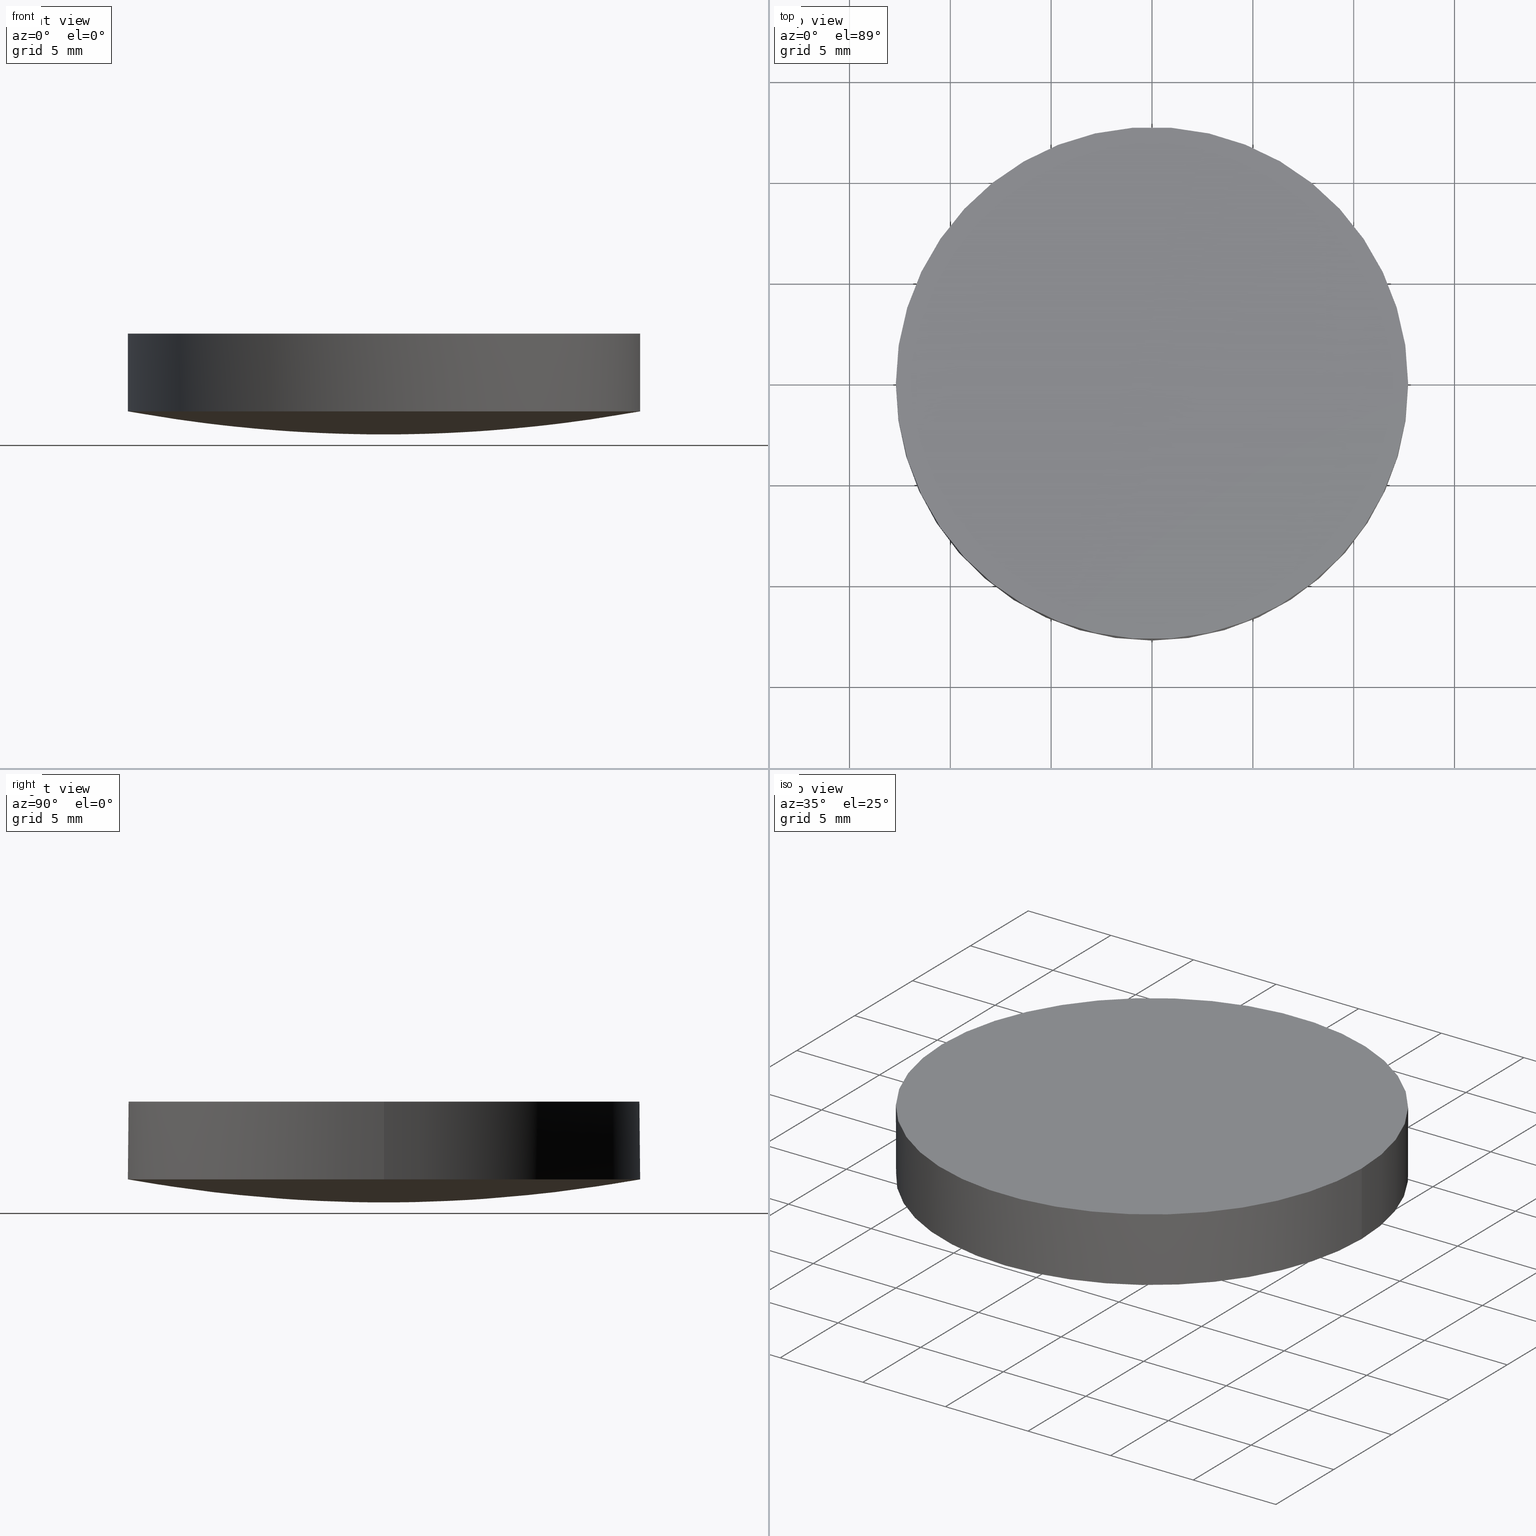
[diagram: canonical four-view strip — front | top / right | iso, engineering-drawing reading convention]
A machine part, canonical four-view strip (front | top / right | iso — engineering-drawing reading convention). The complete STEP part file that produces these views, byte-faithful:
ISO-10303-21;
HEADER;
FILE_DESCRIPTION (( 'STEP AP203' ),
    '1' );
FILE_NAME ('140005.STEP',
    '2021-03-15T05:15:01',
    ( '' ),
    ( '' ),
    'SwSTEP 2.0',
    'SolidWorks 2020',
    '' );
FILE_SCHEMA (( 'CONFIG_CONTROL_DESIGN' ));
ENDSEC;

DATA;
#1 = CARTESIAN_POINT ( 'NONE',  ( 0.7056909850177069954, 0.7056909850177069954, 0.000000000000000000 ) ) ;
#2 = CARTESIAN_POINT ( 'NONE',  ( 8.291244220368971796, 8.291244220368971796, 0.4872908528978099896 ) ) ;
#3 = PRODUCT ( '140005', '140005', '', ( #180 ) ) ;
#4 = CARTESIAN_POINT ( 'NONE',  ( 0.000000000000000000, 12.69999999999999929, 1.142824642375869892 ) ) ;
#5 = CARTESIAN_POINT ( 'NONE',  ( 8.291244220368971796, -8.291244220368971796, 0.4872908528978099896 ) ) ;
#6 = CARTESIAN_POINT ( 'NONE',  ( 0.000000000000000000, 0.000000000000000000, 0.000000000000000000 ) ) ;
#7 = APPLICATION_CONTEXT ( 'configuration controlled 3d designs of mechanical parts and assemblies' ) ;
#8 = CARTESIAN_POINT ( 'NONE',  ( -2.117681902288059970, 2.117681902288059970, 0.02132316921280770147 ) ) ;
#9 = CARTESIAN_POINT ( 'NONE',  ( -3.851859888774471706E-31, 12.70000000000000284, 1.142824642375869892 ) ) ;
#10 = CARTESIAN_POINT ( 'NONE',  ( -2.117681902288059970, -2.117681902288059970, 0.02132316921280770147 ) ) ;
#11 = DIRECTION ( 'NONE',  ( 1.000000000000000000, 0.000000000000000000, 0.000000000000000000 ) ) ;
#12 = CARTESIAN_POINT ( 'NONE',  ( 0.000000000000000000, 0.000000000000000000, 0.000000000000000000 ) ) ;
#13 = CARTESIAN_POINT ( 'NONE',  ( 1.734723475976807094E-15, -1.345898117247522881E-15, 1.142824642375869892 ) ) ;
#14 = CC_DESIGN_APPROVAL ( #113, ( #174 ) ) ;
#15 = CARTESIAN_POINT ( 'NONE',  ( -4.753890723760700398E-16, -3.881846363433560043, 0.1011880740004540008 ) ) ;
#16 = CARTESIAN_POINT ( 'NONE',  ( 0.000000000000000000, 12.69999999999999929, 1.142824642375869892 ) ) ;
#17 = CARTESIAN_POINT ( 'NONE',  ( 0.7056909850177069954, 0.7056909850177069954, 0.000000000000000000 ) ) ;
#18 = DIRECTION ( 'NONE',  ( 0.000000000000000000, 0.000000000000000000, 1.000000000000000000 ) ) ;
#19 = CARTESIAN_POINT ( 'NONE',  ( -0.7056909850177069954, 0.7056909850177069954, 0.000000000000000000 ) ) ;
#20 = CARTESIAN_POINT ( 'NONE',  ( -7.057820453293380147, 4.321668613541229862E-16, 0.3483339205862859833 ) ) ;
#21 = CARTESIAN_POINT ( 'NONE',  ( -1.231959341978499956E-15, -10.05971144362800018, 0.7061987570028900318 ) ) ;
#22 = EDGE_CURVE ( 'NONE', #122, #62, #171, .T. ) ;
#23 = CARTESIAN_POINT ( 'NONE',  ( 8.881784197001250351E-16, -8.881784197001250351E-16, 5.000000000000000000 ) ) ;
#24 = CARTESIAN_POINT ( 'NONE',  ( 11.47043146041010075, -2.107084075924560334E-15, 0.9228980148827420349 ) ) ;
#25 = CIRCLE ( 'NONE', #212, 12.70000000000000284 ) ;
#26 = PERSON_AND_ORGANIZATION ( #150, #33 ) ;
#27 = APPROVAL_PERSON_ORGANIZATION ( #31, #258, #381 ) ;
#28 = CARTESIAN_POINT ( 'NONE',  ( 2.117681902288059970, -3.890118544874019760E-16, 0.02132316921280770147 ) ) ;
#29 = CARTESIAN_POINT ( 'NONE',  ( 0.000000000000000000, 0.000000000000000000, 0.000000000000000000 ) ) ;
#30 = CARTESIAN_POINT ( 'NONE',  ( -12.69999999999999929, 7.776507174585690191E-16, 1.142824642375869892 ) ) ;
#31 = PERSON_AND_ORGANIZATION ( #150, #33 ) ;
#32 = CARTESIAN_POINT ( 'NONE',  ( 0.7056909850177069954, -0.7056909850177069954, 0.000000000000000000 ) ) ;
#33 = ORGANIZATION ( 'δָ��', 'δָ��', '' ) ;
#34 = CARTESIAN_POINT ( 'NONE',  ( 12.69999999999999929, 12.69999999999999929, 1.142824642375869892 ) ) ;
#35 = CARTESIAN_POINT ( 'NONE',  ( 10.05971144362800018, -1.847939012967749934E-15, 0.7061987570028900318 ) ) ;
#36 = ORIENTED_EDGE ( 'NONE', *, *, #366, .T. ) ;
#37 = CARTESIAN_POINT ( 'NONE',  ( -8.642222059890769995E-17, -0.7056909850177069954, 0.000000000000000000 ) ) ;
#38 = DIRECTION ( 'NONE',  ( -0.000000000000000000, -0.000000000000000000, -1.000000000000000000 ) ) ;
#39 = LOCAL_TIME ( 13, 15, 1.000000000000000000, #304 ) ;
#40 = CARTESIAN_POINT ( 'NONE',  ( -3.881846363433560043, -3.881846363433560043, 0.1011880740004540008 ) ) ;
#41 = EDGE_CURVE ( 'NONE', #79, #292, #296, .T. ) ;
#42 = ORIENTED_EDGE ( 'NONE', *, *, #240, .F. ) ;
#43 = CARTESIAN_POINT ( 'NONE',  ( -4.753890723760700398E-16, -3.881846363433560043, 0.1011880740004540008 ) ) ;
#44 = CARTESIAN_POINT ( 'NONE',  ( 12.69999999999999929, -2.332952152375710015E-15, 1.142824642375869892 ) ) ;
#45 = CARTESIAN_POINT ( 'NONE',  ( 0.000000000000000000, 0.000000000000000000, 0.000000000000000000 ) ) ;
#46 = CARTESIAN_POINT ( 'NONE',  ( -12.69999999999999929, 7.776507174585690191E-16, 1.142824642375869892 ) ) ;
#47 = CARTESIAN_POINT ( 'NONE',  ( 0.000000000000000000, 7.057820453293380147, 0.3483339205862859833 ) ) ;
#48 = ORIENTED_EDGE ( 'NONE', *, *, #366, .F. ) ;
#49 =( NAMED_UNIT ( * ) SI_UNIT ( $, .STERADIAN. ) SOLID_ANGLE_UNIT ( ) );
#50 = CARTESIAN_POINT ( 'NONE',  ( -4.753890723760700398E-16, -3.881846363433560043, 0.1011880740004540008 ) ) ;
#51 = PERSON_AND_ORGANIZATION ( #150, #33 ) ;
#52 = CARTESIAN_POINT ( 'NONE',  ( -1.015384569542389983E-15, -8.291244220368971796, 0.4872908528978099896 ) ) ;
#53 = SECURITY_CLASSIFICATION_LEVEL ( 'unclassified' ) ;
#54 = CARTESIAN_POINT ( 'NONE',  ( 8.291244220368971796, -1.523076854313580044E-15, 0.4872908528978099896 ) ) ;
#55 = EDGE_CURVE ( 'NONE', #190, #95, #124, .T. ) ;
#56 = CARTESIAN_POINT ( 'NONE',  ( 2.117681902288059970, -2.117681902288059970, 0.02132316921280770147 ) ) ;
#57 = COORDINATED_UNIVERSAL_TIME_OFFSET ( 8, 0, .AHEAD. ) ;
#58 = CARTESIAN_POINT ( 'NONE',  ( -8.291244220368971796, 5.076922847711930194E-16, 0.4872908528978099896 ) ) ;
#59 = CARTESIAN_POINT ( 'NONE',  ( 0.000000000000000000, 8.291244220368971796, 0.4872908528978099896 ) ) ;
#60 = CARTESIAN_POINT ( 'NONE',  ( -8.643337227082449863E-16, -7.057820453293380147, 0.3483339205862859833 ) ) ;
#61 = CARTESIAN_POINT ( 'NONE',  ( 0.000000000000000000, 0.000000000000000000, 0.000000000000000000 ) ) ;
#62 = VERTEX_POINT ( 'NONE', #362 ) ;
#63 = CARTESIAN_POINT ( 'NONE',  ( 0.000000000000000000, 11.47043146041010075, 0.9228980148827420349 ) ) ;
#64 = APPROVAL_PERSON_ORGANIZATION ( #26, #113, #397 ) ;
#65 = DESIGN_CONTEXT ( 'detailed design', #111, 'design' ) ;
#66 = CC_DESIGN_DATE_AND_TIME_ASSIGNMENT ( #193, #154, ( #352 ) ) ;
#67 = CARTESIAN_POINT ( 'NONE',  ( -11.47043146041010075, 11.47043146041010075, 0.9228980148827421459 ) ) ;
#68 = CARTESIAN_POINT ( 'NONE',  ( 0.000000000000000000, 0.000000000000000000, 0.000000000000000000 ) ) ;
#69 = CARTESIAN_POINT ( 'NONE',  ( 0.000000000000000000, 5.646186924660569595, 0.2208187616476849913 ) ) ;
#70 = ORIENTED_EDGE ( 'NONE', *, *, #326, .F. ) ;
#71 = VECTOR ( 'NONE', #331, 1000.000000000000000 ) ;
#72 = CARTESIAN_POINT ( 'NONE',  ( 0.000000000000000000, 0.000000000000000000, 0.000000000000000000 ) ) ;
#73 = CARTESIAN_POINT ( 'NONE',  ( -3.851859888774471706E-31, 12.70000000000000284, 1.142824642375869892 ) ) ;
#74 = LINE ( 'NONE', #297, #260 ) ;
#75 = CARTESIAN_POINT ( 'NONE',  ( 8.881784197001250351E-16, -8.881784197001250351E-16, 5.000000000000000000 ) ) ;
#76 = CARTESIAN_POINT ( 'NONE',  ( 5.646186924660569595, -1.037187711700979962E-15, 0.2208187616476849913 ) ) ;
#77 = CARTESIAN_POINT ( 'NONE',  ( 0.000000000000000000, 0.000000000000000000, 0.000000000000000000 ) ) ;
#78 = APPROVAL_ROLE ( '' ) ;
#79 = VERTEX_POINT ( 'NONE', #394 ) ;
#80 = PERSON_AND_ORGANIZATION ( #150, #33 ) ;
#81 = CARTESIAN_POINT ( 'NONE',  ( -7.057820453293380147, 7.057820453293380147, 0.3483339205862859833 ) ) ;
#82 =( LENGTH_UNIT ( ) NAMED_UNIT ( * ) SI_UNIT ( .MILLI., .METRE. ) );
#83 = CARTESIAN_POINT ( 'NONE',  ( -10.05971144362800018, 10.05971144362800018, 0.7061987570028901429 ) ) ;
#84 = APPROVAL_DATE_TIME ( #207, #350 ) ;
#85 = CARTESIAN_POINT ( 'NONE',  ( 5.646186924660570483, 5.646186924660570483, 0.2208187616476849913 ) ) ;
#86 = PERSON_AND_ORGANIZATION_ROLE ( 'creator' ) ;
#87 = CARTESIAN_POINT ( 'NONE',  ( 7.057820453293370377, -7.057820453293380147, 0.3483339205862859833 ) ) ;
#88 = CARTESIAN_POINT ( 'NONE',  ( 10.05971144362800018, -1.847939012967749934E-15, 0.7061987570028900318 ) ) ;
#89 = CARTESIAN_POINT ( 'NONE',  ( -10.05971144362800018, 10.05971144362800018, 0.7061987570028901429 ) ) ;
#90 = AXIS2_PLACEMENT_3D ( 'NONE', #13, #270, #268 ) ;
#91 = CARTESIAN_POINT ( 'NONE',  ( 7.057820453293380147, 7.057820453293370377, 0.3483339205862859833 ) ) ;
#92 = ORIENTED_EDGE ( 'NONE', *, *, #145, .F. ) ;
#93 = ADVANCED_FACE ( 'NONE', ( #229 ), #102, .T. ) ;
#94 = CARTESIAN_POINT ( 'NONE',  ( 11.47043146041010075, -11.47043146041010075, 0.9228980148827421459 ) ) ;
#95 = VERTEX_POINT ( 'NONE', #105 ) ;
#96 = CARTESIAN_POINT ( 'NONE',  ( -11.47043146041010075, 7.023613586415189939E-16, 0.9228980148827420349 ) ) ;
#97 = CC_DESIGN_APPROVAL ( #350, ( #392 ) ) ;
#98 = ORIENTED_EDGE ( 'NONE', *, *, #22, .T. ) ;
#99 = CARTESIAN_POINT ( 'NONE',  ( 0.000000000000000000, 5.646186924660569595, 0.2208187616476849913 ) ) ;
#100 = CARTESIAN_POINT ( 'NONE',  ( 0.000000000000000000, 0.000000000000000000, 0.000000000000000000 ) ) ;
#101 = CARTESIAN_POINT ( 'NONE',  ( -8.643337227082449863E-16, -7.057820453293380147, 0.3483339205862859833 ) ) ;
#102 = PLANE ( 'NONE',  #343 ) ;
#103 =( GEOMETRIC_REPRESENTATION_CONTEXT ( 3 ) GLOBAL_UNCERTAINTY_ASSIGNED_CONTEXT ( ( #330 ) ) GLOBAL_UNIT_ASSIGNED_CONTEXT ( ( #82, #372, #49 ) ) REPRESENTATION_CONTEXT ( 'NONE', 'WORKASPACE' ) );
#104 = CARTESIAN_POINT ( 'NONE',  ( 8.881784197001250351E-16, -8.881784197001250351E-16, 1.142824642375869892 ) ) ;
#105 = CARTESIAN_POINT ( 'NONE',  ( -1.555301434917141588E-15, -12.70000000000000462, 1.142824642375869892 ) ) ;
#106 = CARTESIAN_POINT ( 'NONE',  ( 0.000000000000000000, 0.000000000000000000, 0.000000000000000000 ) ) ;
#107 = CC_DESIGN_DATE_AND_TIME_ASSIGNMENT ( #184, #311, ( #392 ) ) ;
#108 = CARTESIAN_POINT ( 'NONE',  ( 0.000000000000000000, 11.47043146041010075, 0.9228980148827420349 ) ) ;
#109 = DIRECTION ( 'NONE',  ( 1.000000000000000000, 0.000000000000000000, 0.000000000000000000 ) ) ;
#110 = ORIENTED_EDGE ( 'NONE', *, *, #170, .T. ) ;
#111 = APPLICATION_CONTEXT ( 'configuration controlled 3d designs of mechanical parts and assemblies' ) ;
#112 = CARTESIAN_POINT ( 'NONE',  ( -3.881846363433560043, -3.881846363433560043, 0.1011880740004540008 ) ) ;
#113 = APPROVAL ( #152, 'δָ��' ) ;
#114 = CARTESIAN_POINT ( 'NONE',  ( 10.05971144362800018, -10.05971144362800018, 0.7061987570028901429 ) ) ;
#115 = COORDINATED_UNIVERSAL_TIME_OFFSET ( 8, 0, .AHEAD. ) ;
#116 = CARTESIAN_POINT ( 'NONE',  ( -8.643337227082449863E-16, -7.057820453293380147, 0.3483339205862859833 ) ) ;
#117 = AXIS2_PLACEMENT_3D ( 'NONE', #167, #38, #390 ) ;
#118 = DIRECTION ( 'NONE',  ( 0.000000000000000000, 0.000000000000000000, 1.000000000000000000 ) ) ;
#119 = CARTESIAN_POINT ( 'NONE',  ( 0.000000000000000000, 10.05971144362800018, 0.7061987570028900318 ) ) ;
#120 = CARTESIAN_POINT ( 'NONE',  ( -3.881846363433560043, 2.376945361880350199E-16, 0.1011880740004540008 ) ) ;
#121 = PRODUCT_DEFINITION_SHAPE ( 'NONE', 'NONE',  #392 ) ;
#122 = VERTEX_POINT ( 'NONE', #9 ) ;
#123 = CARTESIAN_POINT ( 'NONE',  ( -7.057820453293380147, -7.057820453293380147, 0.3483339205862859833 ) ) ;
#124 = CIRCLE ( 'NONE', #90, 12.70000000000000284 ) ;
#125 = CARTESIAN_POINT ( 'NONE',  ( 0.000000000000000000, 0.000000000000000000, 0.000000000000000000 ) ) ;
#126 = DATE_AND_TIME ( #187, #261 ) ;
#127 = CARTESIAN_POINT ( 'NONE',  ( 0.000000000000000000, 10.05971144362800018, 0.7061987570028900318 ) ) ;
#128 = MANIFOLD_SOLID_BREP ( '����1', #254 ) ;
#129 = CARTESIAN_POINT ( 'NONE',  ( 12.69999999999999929, -12.69999999999999929, 1.142824642375869892 ) ) ;
#130 = CARTESIAN_POINT ( 'NONE',  ( 0.000000000000000000, 2.117681902288059970, 0.02132316921280770147 ) ) ;
#131 = CARTESIAN_POINT ( 'NONE',  ( 0.000000000000000000, 3.881846363433560043, 0.1011880740004540008 ) ) ;
#132 = CARTESIAN_POINT ( 'NONE',  ( 0.000000000000000000, 0.7056909850177069954, 0.000000000000000000 ) ) ;
#133 = CARTESIAN_POINT ( 'NONE',  ( 12.70000000000000462, -8.881784197001248379E-16, 1.142824642375869892 ) ) ;
#134 = CARTESIAN_POINT ( 'NONE',  ( 5.646186924660570483, 5.646186924660570483, 0.2208187616476849913 ) ) ;
#135 = EDGE_LOOP ( 'NONE', ( #48, #287 ) ) ;
#136 = CC_DESIGN_PERSON_AND_ORGANIZATION_ASSIGNMENT ( #214, #342, ( #174 ) ) ;
#137 = CARTESIAN_POINT ( 'NONE',  ( -3.881846363433560043, 3.881846363433560043, 0.1011880740004540008 ) ) ;
#138 = EDGE_LOOP ( 'NONE', ( #317, #92, #358, #252, #36 ) ) ;
#139 =( BOUNDED_SURFACE ( )  B_SPLINE_SURFACE ( 3, 2, ( 
 ( #364, #333, #46, #369, #173, #201, #44, #299, #16 ),
 ( #108, #236, #306, #153, #142, #399, #24, #249, #277 ),
 ( #119, #83, #244, #405, #21, #114, #88, #341, #379 ),
 ( #349, #375, #58, #216, #52, #250, #54, #373, #149 ),
 ( #280, #81, #20, #179, #116, #87, #339, #210, #144 ),
 ( #310, #147, #215, #211, #344, #400, #181, #85, #404 ),
 ( #242, #308, #120, #112, #50, #185, #378, #279, #402 ),
 ( #247, #177, #312, #376, #347, #56, #28, #282, #303 ),
 ( #182, #19, #275, #351, #356, #32, #155, #1, #259 ),
 ( #125, #29, #316, #195, #61, #6, #191, #321, #354 ) ),
 .UNSPECIFIED., .F., .T., .F. ) 
 B_SPLINE_SURFACE_WITH_KNOTS ( ( 4, 1, 1, 1, 1, 1, 1, 4 ),
 ( 3, 2, 2, 2, 3 ),
 ( 0.000000000000000000, 0.2934918748177540171, 0.3352534923770330022, 0.4186732724612799994, 0.5851388632198070150, 0.6682250307714420190, 0.8341866061546360234, 1.000000000000000000 ),
 ( 0.000000000000000000, 90.00000000000000000, 180.0000000000000000, 270.0000000000000000, 360.0000000000000000 ),
 .UNSPECIFIED. ) 
 GEOMETRIC_REPRESENTATION_ITEM ( )  RATIONAL_B_SPLINE_SURFACE ( (
 ( 1.000000000000000000, 0.7071067811865480168, 1.000000000000000000, 0.7071067811865480168, 1.000000000000000000, 0.7071067811865480168, 1.000000000000000000, 0.7071067811865480168, 1.000000000000000000),
 ( 1.000000000000000000, 0.7071067811865480168, 1.000000000000000000, 0.7071067811865480168, 1.000000000000000000, 0.7071067811865480168, 1.000000000000000000, 0.7071067811865480168, 1.000000000000000000),
 ( 1.000000000000000000, 0.7071067811865480168, 1.000000000000000000, 0.7071067811865480168, 1.000000000000000000, 0.7071067811865480168, 1.000000000000000000, 0.7071067811865480168, 1.000000000000000000),
 ( 1.000000000000000000, 0.7071067811865480168, 1.000000000000000000, 0.7071067811865480168, 1.000000000000000000, 0.7071067811865480168, 1.000000000000000000, 0.7071067811865480168, 1.000000000000000000),
 ( 1.000000000000000000, 0.7071067811865480168, 1.000000000000000000, 0.7071067811865480168, 1.000000000000000000, 0.7071067811865480168, 1.000000000000000000, 0.7071067811865480168, 1.000000000000000000),
 ( 1.000000000000000000, 0.7071067811865480168, 1.000000000000000000, 0.7071067811865480168, 1.000000000000000000, 0.7071067811865480168, 1.000000000000000000, 0.7071067811865480168, 1.000000000000000000),
 ( 1.000000000000000000, 0.7071067811865480168, 1.000000000000000000, 0.7071067811865480168, 1.000000000000000000, 0.7071067811865480168, 1.000000000000000000, 0.7071067811865480168, 1.000000000000000000),
 ( 1.000000000000000000, 0.7071067811865480168, 1.000000000000000000, 0.7071067811865480168, 1.000000000000000000, 0.7071067811865480168, 1.000000000000000000, 0.7071067811865480168, 1.000000000000000000),
 ( 1.000000000000000000, 0.7071067811865480168, 1.000000000000000000, 0.7071067811865480168, 1.000000000000000000, 0.7071067811865480168, 1.000000000000000000, 0.7071067811865480168, 1.000000000000000000),
 ( 1.000000000000000000, 0.7071067811865480168, 1.000000000000000000, 0.7071067811865480168, 1.000000000000000000, 0.7071067811865480168, 1.000000000000000000, 0.7071067811865480168, 1.000000000000000000) ) ) 
 REPRESENTATION_ITEM ( '' )  SURFACE ( )  );
#140 = CARTESIAN_POINT ( 'NONE',  ( 0.000000000000000000, 0.000000000000000000, 0.000000000000000000 ) ) ;
#141 = CARTESIAN_POINT ( 'NONE',  ( 8.881784197001250351E-16, -8.881784197001250351E-16, 1.142824642375869892 ) ) ;
#142 = CARTESIAN_POINT ( 'NONE',  ( -1.404722717283039960E-15, -11.47043146041010075, 0.9228980148827420349 ) ) ;
#143 = CALENDAR_DATE ( 2021, 15, 3 ) ;
#144 = CARTESIAN_POINT ( 'NONE',  ( 0.000000000000000000, 7.057820453293380147, 0.3483339205862859833 ) ) ;
#145 = EDGE_CURVE ( 'NONE', #95, #79, #281, .T. ) ;
#146 = PERSON_AND_ORGANIZATION ( #150, #33 ) ;
#147 = CARTESIAN_POINT ( 'NONE',  ( -5.646186924660570483, 5.646186924660570483, 0.2208187616476849913 ) ) ;
#148 = CARTESIAN_POINT ( 'NONE',  ( 1.734723475976807094E-15, -1.345898117247522881E-15, 1.142824642375869892 ) ) ;
#149 = CARTESIAN_POINT ( 'NONE',  ( 0.000000000000000000, 8.291244220368971796, 0.4872908528978099896 ) ) ;
#150 = PERSON ( 'δָ��', 'δָ��', 'δָ��', ('δָ��'), ('δָ��'), ('δָ��') ) ;
#151 = AXIS2_PLACEMENT_3D ( 'NONE', #141, #398, #206 ) ;
#152 = APPROVAL_STATUS ( 'not_yet_approved' ) ;
#153 = CARTESIAN_POINT ( 'NONE',  ( -11.47043146041010075, -11.47043146041010075, 0.9228980148827421459 ) ) ;
#154 = DATE_TIME_ROLE ( 'classification_date' ) ;
#155 = CARTESIAN_POINT ( 'NONE',  ( 0.7056909850177069954, -1.296333308983620122E-16, 0.000000000000000000 ) ) ;
#156 = FACE_OUTER_BOUND ( 'NONE', #371, .T. ) ;
#157 = ADVANCED_FACE ( 'NONE', ( #294 ), #328, .T. ) ;
#158 = COORDINATED_UNIVERSAL_TIME_OFFSET ( 8, 0, .AHEAD. ) ;
#159 = CARTESIAN_POINT ( 'NONE',  ( -1.555301434917140010E-15, -12.69999999999999929, 1.142824642375869892 ) ) ;
#160 = ORIENTED_EDGE ( 'NONE', *, *, #314, .T. ) ;
#161 = CARTESIAN_POINT ( 'NONE',  ( 11.47043146041010075, -2.107084075924560334E-15, 0.9228980148827420349 ) ) ;
#162 = CARTESIAN_POINT ( 'NONE',  ( 10.05971144362800018, 10.05971144362800018, 0.7061987570028901429 ) ) ;
#163 = CIRCLE ( 'NONE', #219, 12.69999999999999929 ) ;
#164 = CARTESIAN_POINT ( 'NONE',  ( -5.646186924660570483, -5.646186924660570483, 0.2208187616476849913 ) ) ;
#165 = CARTESIAN_POINT ( 'NONE',  ( 0.000000000000000000, 10.05971144362800018, 0.7061987570028900318 ) ) ;
#166 = CARTESIAN_POINT ( 'NONE',  ( -1.555301434917141588E-15, -12.70000000000000462, 1.142824642375869892 ) ) ;
#167 = CARTESIAN_POINT ( 'NONE',  ( 1.734723475976807094E-15, -1.345898117247522881E-15, 1.142824642375869892 ) ) ;
#168 = CARTESIAN_POINT ( 'NONE',  ( 2.117681902288059970, -3.890118544874019760E-16, 0.02132316921280770147 ) ) ;
#169 = CARTESIAN_POINT ( 'NONE',  ( 0.000000000000000000, 7.057820453293380147, 0.3483339205862859833 ) ) ;
#170 = EDGE_CURVE ( 'NONE', #292, #337, #238, .T. ) ;
#171 = B_SPLINE_CURVE_WITH_KNOTS ( 'NONE', 3,
 ( #73, #234, #165, #203, #169, #264, #131, #301, #272, #77 ),
 .UNSPECIFIED., .F., .F.,
 ( 4, 1, 1, 1, 1, 1, 1, 4 ),
 ( 0.000000000000000000, 0.2934918748177540171, 0.3352534923770330022, 0.4186732724612799994, 0.5851388632198070150, 0.6682250307714420190, 0.8341866061546360234, 1.000000000000000000 ),
 .UNSPECIFIED. ) ;
#172 = CARTESIAN_POINT ( 'NONE',  ( -1.015384569542389983E-15, -8.291244220368971796, 0.4872908528978099896 ) ) ;
#173 = CARTESIAN_POINT ( 'NONE',  ( -1.555301434917140010E-15, -12.69999999999999929, 1.142824642375869892 ) ) ;
#174 = PRODUCT_DEFINITION_FORMATION_WITH_SPECIFIED_SOURCE ( '�κ�', '', #3, .NOT_KNOWN. ) ;
#175 = CARTESIAN_POINT ( 'NONE',  ( 0.000000000000000000, 3.881846363433560043, 0.1011880740004540008 ) ) ;
#176 = ORIENTED_EDGE ( 'NONE', *, *, #41, .T. ) ;
#177 = CARTESIAN_POINT ( 'NONE',  ( -2.117681902288059970, 2.117681902288059970, 0.02132316921280770147 ) ) ;
#178 = COORDINATED_UNIVERSAL_TIME_OFFSET ( 8, 0, .AHEAD. ) ;
#179 = CARTESIAN_POINT ( 'NONE',  ( -7.057820453293380147, -7.057820453293380147, 0.3483339205862859833 ) ) ;
#180 = MECHANICAL_CONTEXT ( 'NONE', #7, 'mechanical' ) ;
#181 = CARTESIAN_POINT ( 'NONE',  ( 5.646186924660569595, -1.037187711700979962E-15, 0.2208187616476849913 ) ) ;
#182 = CARTESIAN_POINT ( 'NONE',  ( 0.000000000000000000, 0.7056909850177069954, 0.000000000000000000 ) ) ;
#183 = CC_DESIGN_PERSON_AND_ORGANIZATION_ASSIGNMENT ( #80, #248, ( #3 ) ) ;
#184 = DATE_AND_TIME ( #338, #274 ) ;
#185 = CARTESIAN_POINT ( 'NONE',  ( 3.881846363433560043, -3.881846363433560043, 0.1011880740004540008 ) ) ;
#186 = CARTESIAN_POINT ( 'NONE',  ( -8.291244220368971796, -8.291244220368971796, 0.4872908528978099896 ) ) ;
#187 = CALENDAR_DATE ( 2021, 15, 3 ) ;
#188 = CC_DESIGN_PERSON_AND_ORGANIZATION_ASSIGNMENT ( #51, #86, ( #392 ) ) ;
#189 = CARTESIAN_POINT ( 'NONE',  ( 7.057820453293370377, -7.057820453293380147, 0.3483339205862859833 ) ) ;
#190 = VERTEX_POINT ( 'NONE', #133 ) ;
#191 = CARTESIAN_POINT ( 'NONE',  ( 0.000000000000000000, 0.000000000000000000, 0.000000000000000000 ) ) ;
#192 = AXIS2_PLACEMENT_3D ( 'NONE', #148, #309, #302 ) ;
#193 = DATE_AND_TIME ( #246, #313 ) ;
#194 = CARTESIAN_POINT ( 'NONE',  ( -1.231959341978499956E-15, -10.05971144362800018, 0.7061987570028900318 ) ) ;
#195 = CARTESIAN_POINT ( 'NONE',  ( 0.000000000000000000, 0.000000000000000000, 0.000000000000000000 ) ) ;
#196 = CARTESIAN_POINT ( 'NONE',  ( 0.7056909850177069954, -0.7056909850177069954, 0.000000000000000000 ) ) ;
#197 = EDGE_LOOP ( 'NONE', ( #355, #383, #224, #98 ) ) ;
#198 = CARTESIAN_POINT ( 'NONE',  ( 3.881846363433560043, -3.881846363433560043, 0.1011880740004540008 ) ) ;
#199 = ORIENTED_EDGE ( 'NONE', *, *, #22, .F. ) ;
#200 = CARTESIAN_POINT ( 'NONE',  ( -12.69999999999999751, 6.671230152170134961E-16, 5.000000000000000000 ) ) ;
#201 = CARTESIAN_POINT ( 'NONE',  ( 12.69999999999999929, -12.69999999999999929, 1.142824642375869892 ) ) ;
#202 = DIRECTION ( 'NONE',  ( 1.000000000000000000, 0.000000000000000000, 0.000000000000000000 ) ) ;
#203 = CARTESIAN_POINT ( 'NONE',  ( 0.000000000000000000, 8.291244220368971796, 0.4872908528978099896 ) ) ;
#204 = CARTESIAN_POINT ( 'NONE',  ( -8.642222059890769995E-17, -0.7056909850177069954, 0.000000000000000000 ) ) ;
#205 = APPROVAL_PERSON_ORGANIZATION ( #377, #350, #78 ) ;
#206 = DIRECTION ( 'NONE',  ( 1.000000000000000000, 0.000000000000000000, 0.000000000000000000 ) ) ;
#207 = DATE_AND_TIME ( #340, #325 ) ;
#208 = CARTESIAN_POINT ( 'NONE',  ( -12.69999999999999751, 6.671230152170134961E-16, 1.142824642375869892 ) ) ;
#209 = APPROVAL_STATUS ( 'not_yet_approved' ) ;
#210 = CARTESIAN_POINT ( 'NONE',  ( 7.057820453293380147, 7.057820453293370377, 0.3483339205862859833 ) ) ;
#211 = CARTESIAN_POINT ( 'NONE',  ( -5.646186924660570483, -5.646186924660570483, 0.2208187616476849913 ) ) ;
#212 = AXIS2_PLACEMENT_3D ( 'NONE', #386, #283, #318 ) ;
#213 = AXIS2_PLACEMENT_3D ( 'NONE', #241, #118, #109 ) ;
#214 = PERSON_AND_ORGANIZATION ( #150, #33 ) ;
#215 = CARTESIAN_POINT ( 'NONE',  ( -5.646186924660569595, 3.457292372336599873E-16, 0.2208187616476849913 ) ) ;
#216 = CARTESIAN_POINT ( 'NONE',  ( -8.291244220368971796, -8.291244220368971796, 0.4872908528978099896 ) ) ;
#217 = SHAPE_DEFINITION_REPRESENTATION ( #121, #346 ) ;
#218 = CARTESIAN_POINT ( 'NONE',  ( -10.05971144362800018, 6.159796709892499782E-16, 0.7061987570028900318 ) ) ;
#219 = AXIS2_PLACEMENT_3D ( 'NONE', #23, #273, #307 ) ;
#220 = CARTESIAN_POINT ( 'NONE',  ( -10.05971144362800018, -10.05971144362800018, 0.7061987570028901429 ) ) ;
#221 = ADVANCED_FACE ( 'NONE', ( #266 ), #139, .T. ) ;
#222 = CARTESIAN_POINT ( 'NONE',  ( 0.000000000000000000, 11.47043146041010075, 0.9228980148827420349 ) ) ;
#223 = CARTESIAN_POINT ( 'NONE',  ( 10.05971144362800018, -10.05971144362800018, 0.7061987570028901429 ) ) ;
#224 = ORIENTED_EDGE ( 'NONE', *, *, #388, .T. ) ;
#225 = CARTESIAN_POINT ( 'NONE',  ( -1.404722717283039960E-15, -11.47043146041010075, 0.9228980148827420349 ) ) ;
#226 = ORIENTED_EDGE ( 'NONE', *, *, #388, .F. ) ;
#227 = CARTESIAN_POINT ( 'NONE',  ( -5.646186924660570483, 5.646186924660570483, 0.2208187616476849913 ) ) ;
#228 = FACE_OUTER_BOUND ( 'NONE', #138, .T. ) ;
#229 = FACE_OUTER_BOUND ( 'NONE', #135, .T. ) ;
#230 = PRODUCT_RELATED_PRODUCT_CATEGORY ( 'detail', '', ( #3 ) ) ;
#231 = CARTESIAN_POINT ( 'NONE',  ( -0.7056909850177069954, -0.7056909850177069954, 0.000000000000000000 ) ) ;
#232 = ORIENTED_EDGE ( 'NONE', *, *, #55, .T. ) ;
#233 = CARTESIAN_POINT ( 'NONE',  ( -2.593412363249349958E-16, -2.117681902288059970, 0.02132316921280770147 ) ) ;
#234 = CARTESIAN_POINT ( 'NONE',  ( 0.000000000000000000, 11.47043146041010075, 0.9228980148827420349 ) ) ;
#235 = CARTESIAN_POINT ( 'NONE',  ( 0.000000000000000000, 0.000000000000000000, 0.000000000000000000 ) ) ;
#236 = CARTESIAN_POINT ( 'NONE',  ( -11.47043146041010075, 11.47043146041010075, 0.9228980148827421459 ) ) ;
#237 = APPLICATION_PROTOCOL_DEFINITION ( 'international standard', 'config_control_design', 1994, #7 ) ;
#238 = CIRCLE ( 'NONE', #305, 12.69999999999999929 ) ;
#239 = DIRECTION ( 'NONE',  ( -0.000000000000000000, -0.000000000000000000, -1.000000000000000000 ) ) ;
#240 = EDGE_CURVE ( 'NONE', #122, #190, #25, .T. ) ;
#241 = CARTESIAN_POINT ( 'NONE',  ( 0.000000000000000000, 0.000000000000000000, 0.000000000000000000 ) ) ;
#242 = CARTESIAN_POINT ( 'NONE',  ( 0.000000000000000000, 3.881846363433560043, 0.1011880740004540008 ) ) ;
#243 = APPROVAL_DATE_TIME ( #276, #113 ) ;
#244 = CARTESIAN_POINT ( 'NONE',  ( -10.05971144362800018, 6.159796709892499782E-16, 0.7061987570028900318 ) ) ;
#245 = ADVANCED_FACE ( 'NONE', ( #156 ), #359, .T. ) ;
#246 = CALENDAR_DATE ( 2021, 15, 3 ) ;
#247 = CARTESIAN_POINT ( 'NONE',  ( 0.000000000000000000, 2.117681902288059970, 0.02132316921280770147 ) ) ;
#248 = PERSON_AND_ORGANIZATION_ROLE ( 'design_owner' ) ;
#249 = CARTESIAN_POINT ( 'NONE',  ( 11.47043146041010075, 11.47043146041010075, 0.9228980148827421459 ) ) ;
#250 = CARTESIAN_POINT ( 'NONE',  ( 8.291244220368971796, -8.291244220368971796, 0.4872908528978099896 ) ) ;
#251 = CARTESIAN_POINT ( 'NONE',  ( -12.69999999999999929, 12.69999999999999929, 1.142824642375869892 ) ) ;
#252 = ORIENTED_EDGE ( 'NONE', *, *, #326, .T. ) ;
#253 = CARTESIAN_POINT ( 'NONE',  ( -8.291244220368971796, 8.291244220368971796, 0.4872908528978099896 ) ) ;
#254 = CLOSED_SHELL ( 'NONE', ( #245, #157, #221, #288, #93 ) ) ;
#255 = ORIENTED_EDGE ( 'NONE', *, *, #240, .T. ) ;
#256 = APPROVAL_STATUS ( 'not_yet_approved' ) ;
#257 = CARTESIAN_POINT ( 'NONE',  ( 0.000000000000000000, 12.69999999999999929, 1.142824642375869892 ) ) ;
#258 = APPROVAL ( #256, 'δָ��' ) ;
#259 = CARTESIAN_POINT ( 'NONE',  ( 0.000000000000000000, 0.7056909850177069954, 0.000000000000000000 ) ) ;
#260 = VECTOR ( 'NONE', #345, 1000.000000000000000 ) ;
#261 = LOCAL_TIME ( 13, 15, 1.000000000000000000, #158 ) ;
#262 = CARTESIAN_POINT ( 'NONE',  ( 8.291244220368971796, -1.523076854313580044E-15, 0.4872908528978099896 ) ) ;
#263 = CARTESIAN_POINT ( 'NONE',  ( 0.000000000000000000, 0.000000000000000000, 0.000000000000000000 ) ) ;
#264 = CARTESIAN_POINT ( 'NONE',  ( 0.000000000000000000, 5.646186924660569595, 0.2208187616476849913 ) ) ;
#265 = CYLINDRICAL_SURFACE ( 'NONE', #320, 12.69999999999999929 ) ;
#266 = FACE_OUTER_BOUND ( 'NONE', #197, .T. ) ;
#267 = CARTESIAN_POINT ( 'NONE',  ( -0.7056909850177069954, 4.321111029945389928E-17, 0.000000000000000000 ) ) ;
#268 = DIRECTION ( 'NONE',  ( -1.000000000000000000, 0.000000000000000000, 0.000000000000000000 ) ) ;
#269 = CARTESIAN_POINT ( 'NONE',  ( 0.000000000000000000, 2.117681902288059970, 0.02132316921280770147 ) ) ;
#270 = DIRECTION ( 'NONE',  ( -0.000000000000000000, -0.000000000000000000, -1.000000000000000000 ) ) ;
#271 = CARTESIAN_POINT ( 'NONE',  ( 0.000000000000000000, 0.000000000000000000, 0.000000000000000000 ) ) ;
#272 = CARTESIAN_POINT ( 'NONE',  ( 0.000000000000000000, 0.7056909850177069954, 0.000000000000000000 ) ) ;
#273 = DIRECTION ( 'NONE',  ( -0.000000000000000000, -0.000000000000000000, -1.000000000000000000 ) ) ;
#274 = LOCAL_TIME ( 13, 15, 1.000000000000000000, #57 ) ;
#275 = CARTESIAN_POINT ( 'NONE',  ( -0.7056909850177069954, 4.321111029945389928E-17, 0.000000000000000000 ) ) ;
#276 = DATE_AND_TIME ( #143, #39 ) ;
#277 = CARTESIAN_POINT ( 'NONE',  ( 0.000000000000000000, 11.47043146041010075, 0.9228980148827420349 ) ) ;
#278 = PERSON_AND_ORGANIZATION_ROLE ( 'creator' ) ;
#279 = CARTESIAN_POINT ( 'NONE',  ( 3.881846363433560043, 3.881846363433549829, 0.1011880740004540008 ) ) ;
#280 = CARTESIAN_POINT ( 'NONE',  ( 0.000000000000000000, 7.057820453293380147, 0.3483339205862859833 ) ) ;
#281 = CIRCLE ( 'NONE', #117, 12.70000000000000284 ) ;
#282 = CARTESIAN_POINT ( 'NONE',  ( 2.117681902288059970, 2.117681902288059970, 0.02132316921280770147 ) ) ;
#283 = DIRECTION ( 'NONE',  ( -0.000000000000000000, -0.000000000000000000, -1.000000000000000000 ) ) ;
#284 = APPROVAL_DATE_TIME ( #126, #258 ) ;
#285 = CARTESIAN_POINT ( 'NONE',  ( -1.015384569542389983E-15, -8.291244220368971796, 0.4872908528978099896 ) ) ;
#286 = CARTESIAN_POINT ( 'NONE',  ( 12.69999999999999929, -2.332952152375710015E-15, 1.142824642375869892 ) ) ;
#287 = ORIENTED_EDGE ( 'NONE', *, *, #170, .F. ) ;
#288 = ADVANCED_FACE ( 'NONE', ( #228 ), #265, .T. ) ;
#289 = CARTESIAN_POINT ( 'NONE',  ( -8.291244220368971796, 5.076922847711930194E-16, 0.4872908528978099896 ) ) ;
#290 = CARTESIAN_POINT ( 'NONE',  ( 0.000000000000000000, 10.05971144362800018, 0.7061987570028900318 ) ) ;
#291 = CARTESIAN_POINT ( 'NONE',  ( 3.881846363433560043, 3.881846363433549829, 0.1011880740004540008 ) ) ;
#292 = VERTEX_POINT ( 'NONE', #200 ) ;
#293 = CARTESIAN_POINT ( 'NONE',  ( -5.646186924660569595, 3.457292372336599873E-16, 0.2208187616476849913 ) ) ;
#294 = FACE_OUTER_BOUND ( 'NONE', #385, .T. ) ;
#295 = CARTESIAN_POINT ( 'NONE',  ( 2.117681902288059970, -2.117681902288059970, 0.02132316921280770147 ) ) ;
#296 = LINE ( 'NONE', #208, #71 ) ;
#297 = CARTESIAN_POINT ( 'NONE',  ( 12.70000000000000107, -8.881784197001250351E-16, 1.142824642375869892 ) ) ;
#298 = CC_DESIGN_SECURITY_CLASSIFICATION ( #352, ( #174 ) ) ;
#299 = CARTESIAN_POINT ( 'NONE',  ( 12.69999999999999929, 12.69999999999999929, 1.142824642375869892 ) ) ;
#300 = CARTESIAN_POINT ( 'NONE',  ( -3.881846363433560043, 2.376945361880350199E-16, 0.1011880740004540008 ) ) ;
#301 = CARTESIAN_POINT ( 'NONE',  ( 0.000000000000000000, 2.117681902288059970, 0.02132316921280770147 ) ) ;
#302 = DIRECTION ( 'NONE',  ( -1.000000000000000000, 0.000000000000000000, 0.000000000000000000 ) ) ;
#303 = CARTESIAN_POINT ( 'NONE',  ( 0.000000000000000000, 2.117681902288059970, 0.02132316921280770147 ) ) ;
#304 = COORDINATED_UNIVERSAL_TIME_OFFSET ( 8, 0, .AHEAD. ) ;
#305 = AXIS2_PLACEMENT_3D ( 'NONE', #75, #239, #11 ) ;
#306 = CARTESIAN_POINT ( 'NONE',  ( -11.47043146041010075, 7.023613586415189939E-16, 0.9228980148827420349 ) ) ;
#307 = DIRECTION ( 'NONE',  ( 1.000000000000000000, 0.000000000000000000, 0.000000000000000000 ) ) ;
#308 = CARTESIAN_POINT ( 'NONE',  ( -3.881846363433560043, 3.881846363433560043, 0.1011880740004540008 ) ) ;
#309 = DIRECTION ( 'NONE',  ( -0.000000000000000000, -0.000000000000000000, -1.000000000000000000 ) ) ;
#310 = CARTESIAN_POINT ( 'NONE',  ( 0.000000000000000000, 5.646186924660569595, 0.2208187616476849913 ) ) ;
#311 = DATE_TIME_ROLE ( 'creation_date' ) ;
#312 = CARTESIAN_POINT ( 'NONE',  ( -2.117681902288059970, 1.296706181624679909E-16, 0.02132316921280770147 ) ) ;
#313 = LOCAL_TIME ( 13, 15, 1.000000000000000000, #115 ) ;
#314 = EDGE_CURVE ( 'NONE', #95, #62, #335, .T. ) ;
#315 = CARTESIAN_POINT ( 'NONE',  ( -7.057820453293380147, 7.057820453293380147, 0.3483339205862859833 ) ) ;
#316 = CARTESIAN_POINT ( 'NONE',  ( 0.000000000000000000, 0.000000000000000000, 0.000000000000000000 ) ) ;
#317 = ORIENTED_EDGE ( 'NONE', *, *, #41, .F. ) ;
#318 = DIRECTION ( 'NONE',  ( -1.000000000000000000, 0.000000000000000000, 0.000000000000000000 ) ) ;
#319 = CC_DESIGN_PERSON_AND_ORGANIZATION_ASSIGNMENT ( #146, #401, ( #352 ) ) ;
#320 = AXIS2_PLACEMENT_3D ( 'NONE', #104, #360, #202 ) ;
#321 = CARTESIAN_POINT ( 'NONE',  ( 0.000000000000000000, 0.000000000000000000, 0.000000000000000000 ) ) ;
#322 = CARTESIAN_POINT ( 'NONE',  ( -12.69999999999999929, -12.69999999999999929, 1.142824642375869892 ) ) ;
#323 = CARTESIAN_POINT ( 'NONE',  ( 5.646186924660570483, -5.646186924660570483, 0.2208187616476849913 ) ) ;
#324 = CIRCLE ( 'NONE', #192, 12.70000000000000284 ) ;
#325 = LOCAL_TIME ( 13, 15, 1.000000000000000000, #178 ) ;
#326 = EDGE_CURVE ( 'NONE', #190, #337, #74, .T. ) ;
#327 = CARTESIAN_POINT ( 'NONE',  ( -2.593412363249349958E-16, -2.117681902288059970, 0.02132316921280770147 ) ) ;
#328 = CYLINDRICAL_SURFACE ( 'NONE', #151, 12.69999999999999929 ) ;
#329 = CARTESIAN_POINT ( 'NONE',  ( -6.914584744673199746E-16, -5.646186924660569595, 0.2208187616476849913 ) ) ;
#330 = UNCERTAINTY_MEASURE_WITH_UNIT (LENGTH_MEASURE( 1.000000000000000082E-05 ), #82, 'distance_accuracy_value', 'NONE');
#331 = DIRECTION ( 'NONE',  ( 0.000000000000000000, 0.000000000000000000, 1.000000000000000000 ) ) ;
#332 = CARTESIAN_POINT ( 'NONE',  ( -1.404722717283039960E-15, -11.47043146041010075, 0.9228980148827420349 ) ) ;
#333 = CARTESIAN_POINT ( 'NONE',  ( -12.69999999999999929, 12.69999999999999929, 1.142824642375869892 ) ) ;
#334 = CC_DESIGN_PERSON_AND_ORGANIZATION_ASSIGNMENT ( #374, #278, ( #174 ) ) ;
#335 = B_SPLINE_CURVE_WITH_KNOTS ( 'NONE', 3,
 ( #166, #332, #391, #172, #101, #329, #43, #233, #204, #68 ),
 .UNSPECIFIED., .F., .F.,
 ( 4, 1, 1, 1, 1, 1, 1, 4 ),
 ( 0.000000000000000000, 0.2934918748177540171, 0.3352534923770330022, 0.4186732724612799994, 0.5851388632198070150, 0.6682250307714420190, 0.8341866061546360234, 1.000000000000000000 ),
 .UNSPECIFIED. ) ;
#336 = CARTESIAN_POINT ( 'NONE',  ( -6.914584744673199746E-16, -5.646186924660569595, 0.2208187616476849913 ) ) ;
#337 = VERTEX_POINT ( 'NONE', #370 ) ;
#338 = CALENDAR_DATE ( 2021, 15, 3 ) ;
#339 = CARTESIAN_POINT ( 'NONE',  ( 7.057820453293380147, -1.296500584062369945E-15, 0.3483339205862859833 ) ) ;
#340 = CALENDAR_DATE ( 2021, 15, 3 ) ;
#341 = CARTESIAN_POINT ( 'NONE',  ( 10.05971144362800018, 10.05971144362800018, 0.7061987570028901429 ) ) ;
#342 = PERSON_AND_ORGANIZATION_ROLE ( 'design_supplier' ) ;
#343 = AXIS2_PLACEMENT_3D ( 'NONE', #396, #18, #367 ) ;
#344 = CARTESIAN_POINT ( 'NONE',  ( -6.914584744673199746E-16, -5.646186924660569595, 0.2208187616476849913 ) ) ;
#345 = DIRECTION ( 'NONE',  ( 0.000000000000000000, 0.000000000000000000, 1.000000000000000000 ) ) ;
#346 = ADVANCED_BREP_SHAPE_REPRESENTATION ( '140005', ( #128, #213 ), #103 ) ;
#347 = CARTESIAN_POINT ( 'NONE',  ( -2.593412363249349958E-16, -2.117681902288059970, 0.02132316921280770147 ) ) ;
#348 = APPLICATION_PROTOCOL_DEFINITION ( 'international standard', 'config_control_design', 1994, #111 ) ;
#349 = CARTESIAN_POINT ( 'NONE',  ( 0.000000000000000000, 8.291244220368971796, 0.4872908528978099896 ) ) ;
#350 = APPROVAL ( #209, 'δָ��' ) ;
#351 = CARTESIAN_POINT ( 'NONE',  ( -0.7056909850177069954, -0.7056909850177069954, 0.000000000000000000 ) ) ;
#352 = SECURITY_CLASSIFICATION ( '', '', #53 ) ;
#353 = CARTESIAN_POINT ( 'NONE',  ( -7.057820453293380147, 4.321668613541229862E-16, 0.3483339205862859833 ) ) ;
#354 = CARTESIAN_POINT ( 'NONE',  ( 0.000000000000000000, 0.000000000000000000, 0.000000000000000000 ) ) ;
#355 = ORIENTED_EDGE ( 'NONE', *, *, #314, .F. ) ;
#356 = CARTESIAN_POINT ( 'NONE',  ( -8.642222059890769995E-17, -0.7056909850177069954, 0.000000000000000000 ) ) ;
#357 = CARTESIAN_POINT ( 'NONE',  ( 0.000000000000000000, 8.291244220368971796, 0.4872908528978099896 ) ) ;
#358 = ORIENTED_EDGE ( 'NONE', *, *, #55, .F. ) ;
#359 =( BOUNDED_SURFACE ( )  B_SPLINE_SURFACE ( 3, 2, ( 
 ( #257, #251, #30, #322, #159, #129, #286, #34, #4 ),
 ( #63, #67, #96, #384, #225, #94, #161, #380, #222 ),
 ( #127, #89, #218, #220, #194, #223, #35, #162, #290 ),
 ( #59, #253, #289, #186, #285, #5, #262, #2, #357 ),
 ( #387, #315, #353, #123, #60, #189, #382, #91, #47 ),
 ( #69, #227, #293, #164, #336, #323, #76, #134, #99 ),
 ( #175, #137, #300, #40, #15, #198, #389, #291, #393 ),
 ( #269, #8, #361, #10, #327, #295, #168, #363, #130 ),
 ( #132, #365, #267, #231, #37, #196, #368, #17, #395 ),
 ( #12, #263, #106, #140, #100, #72, #45, #235, #271 ) ),
 .UNSPECIFIED., .F., .T., .T. ) 
 B_SPLINE_SURFACE_WITH_KNOTS ( ( 4, 1, 1, 1, 1, 1, 1, 4 ),
 ( 3, 2, 2, 2, 3 ),
 ( 0.000000000000000000, 0.2934918748177540171, 0.3352534923770330022, 0.4186732724612799994, 0.5851388632198070150, 0.6682250307714420190, 0.8341866061546360234, 1.000000000000000000 ),
 ( 0.000000000000000000, 90.00000000000000000, 180.0000000000000000, 270.0000000000000000, 360.0000000000000000 ),
 .UNSPECIFIED. ) 
 GEOMETRIC_REPRESENTATION_ITEM ( )  RATIONAL_B_SPLINE_SURFACE ( (
 ( 1.000000000000000000, 0.7071067811865480168, 1.000000000000000000, 0.7071067811865480168, 1.000000000000000000, 0.7071067811865480168, 1.000000000000000000, 0.7071067811865480168, 1.000000000000000000),
 ( 1.000000000000000000, 0.7071067811865480168, 1.000000000000000000, 0.7071067811865480168, 1.000000000000000000, 0.7071067811865480168, 1.000000000000000000, 0.7071067811865480168, 1.000000000000000000),
 ( 1.000000000000000000, 0.7071067811865480168, 1.000000000000000000, 0.7071067811865480168, 1.000000000000000000, 0.7071067811865480168, 1.000000000000000000, 0.7071067811865480168, 1.000000000000000000),
 ( 1.000000000000000000, 0.7071067811865480168, 1.000000000000000000, 0.7071067811865480168, 1.000000000000000000, 0.7071067811865480168, 1.000000000000000000, 0.7071067811865480168, 1.000000000000000000),
 ( 1.000000000000000000, 0.7071067811865480168, 1.000000000000000000, 0.7071067811865480168, 1.000000000000000000, 0.7071067811865480168, 1.000000000000000000, 0.7071067811865480168, 1.000000000000000000),
 ( 1.000000000000000000, 0.7071067811865480168, 1.000000000000000000, 0.7071067811865480168, 1.000000000000000000, 0.7071067811865480168, 1.000000000000000000, 0.7071067811865480168, 1.000000000000000000),
 ( 1.000000000000000000, 0.7071067811865480168, 1.000000000000000000, 0.7071067811865480168, 1.000000000000000000, 0.7071067811865480168, 1.000000000000000000, 0.7071067811865480168, 1.000000000000000000),
 ( 1.000000000000000000, 0.7071067811865480168, 1.000000000000000000, 0.7071067811865480168, 1.000000000000000000, 0.7071067811865480168, 1.000000000000000000, 0.7071067811865480168, 1.000000000000000000),
 ( 1.000000000000000000, 0.7071067811865480168, 1.000000000000000000, 0.7071067811865480168, 1.000000000000000000, 0.7071067811865480168, 1.000000000000000000, 0.7071067811865480168, 1.000000000000000000),
 ( 1.000000000000000000, 0.7071067811865480168, 1.000000000000000000, 0.7071067811865480168, 1.000000000000000000, 0.7071067811865480168, 1.000000000000000000, 0.7071067811865480168, 1.000000000000000000) ) ) 
 REPRESENTATION_ITEM ( '' )  SURFACE ( )  );
#360 = DIRECTION ( 'NONE',  ( 0.000000000000000000, 0.000000000000000000, 1.000000000000000000 ) ) ;
#361 = CARTESIAN_POINT ( 'NONE',  ( -2.117681902288059970, 1.296706181624679909E-16, 0.02132316921280770147 ) ) ;
#362 = CARTESIAN_POINT ( 'NONE',  ( 0.000000000000000000, 0.000000000000000000, 0.000000000000000000 ) ) ;
#363 = CARTESIAN_POINT ( 'NONE',  ( 2.117681902288059970, 2.117681902288059970, 0.02132316921280770147 ) ) ;
#364 = CARTESIAN_POINT ( 'NONE',  ( 0.000000000000000000, 12.69999999999999929, 1.142824642375869892 ) ) ;
#365 = CARTESIAN_POINT ( 'NONE',  ( -0.7056909850177069954, 0.7056909850177069954, 0.000000000000000000 ) ) ;
#366 = EDGE_CURVE ( 'NONE', #337, #292, #163, .T. ) ;
#367 = DIRECTION ( 'NONE',  ( 1.000000000000000000, 0.000000000000000000, -0.000000000000000000 ) ) ;
#368 = CARTESIAN_POINT ( 'NONE',  ( 0.7056909850177069954, -1.296333308983620122E-16, 0.000000000000000000 ) ) ;
#369 = CARTESIAN_POINT ( 'NONE',  ( -12.69999999999999929, -12.69999999999999929, 1.142824642375869892 ) ) ;
#370 = CARTESIAN_POINT ( 'NONE',  ( 12.70000000000000107, -8.881784197001250351E-16, 5.000000000000000000 ) ) ;
#371 = EDGE_LOOP ( 'NONE', ( #232, #160, #199, #255 ) ) ;
#372 =( NAMED_UNIT ( * ) PLANE_ANGLE_UNIT ( ) SI_UNIT ( $, .RADIAN. ) );
#373 = CARTESIAN_POINT ( 'NONE',  ( 8.291244220368971796, 8.291244220368971796, 0.4872908528978099896 ) ) ;
#374 = PERSON_AND_ORGANIZATION ( #150, #33 ) ;
#375 = CARTESIAN_POINT ( 'NONE',  ( -8.291244220368971796, 8.291244220368971796, 0.4872908528978099896 ) ) ;
#376 = CARTESIAN_POINT ( 'NONE',  ( -2.117681902288059970, -2.117681902288059970, 0.02132316921280770147 ) ) ;
#377 = PERSON_AND_ORGANIZATION ( #150, #33 ) ;
#378 = CARTESIAN_POINT ( 'NONE',  ( 3.881846363433560043, -7.130836085641050103E-16, 0.1011880740004540008 ) ) ;
#379 = CARTESIAN_POINT ( 'NONE',  ( 0.000000000000000000, 10.05971144362800018, 0.7061987570028900318 ) ) ;
#380 = CARTESIAN_POINT ( 'NONE',  ( 11.47043146041010075, 11.47043146041010075, 0.9228980148827421459 ) ) ;
#381 = APPROVAL_ROLE ( '' ) ;
#382 = CARTESIAN_POINT ( 'NONE',  ( 7.057820453293380147, -1.296500584062369945E-15, 0.3483339205862859833 ) ) ;
#383 = ORIENTED_EDGE ( 'NONE', *, *, #145, .T. ) ;
#384 = CARTESIAN_POINT ( 'NONE',  ( -11.47043146041010075, -11.47043146041010075, 0.9228980148827421459 ) ) ;
#385 = EDGE_LOOP ( 'NONE', ( #226, #176, #110, #70, #42 ) ) ;
#386 = CARTESIAN_POINT ( 'NONE',  ( 1.734723475976807094E-15, -1.345898117247522881E-15, 1.142824642375869892 ) ) ;
#387 = CARTESIAN_POINT ( 'NONE',  ( 0.000000000000000000, 7.057820453293380147, 0.3483339205862859833 ) ) ;
#388 = EDGE_CURVE ( 'NONE', #79, #122, #324, .T. ) ;
#389 = CARTESIAN_POINT ( 'NONE',  ( 3.881846363433560043, -7.130836085641050103E-16, 0.1011880740004540008 ) ) ;
#390 = DIRECTION ( 'NONE',  ( -1.000000000000000000, 0.000000000000000000, 0.000000000000000000 ) ) ;
#391 = CARTESIAN_POINT ( 'NONE',  ( -1.231959341978499956E-15, -10.05971144362800018, 0.7061987570028900318 ) ) ;
#392 = PRODUCT_DEFINITION ( 'δ֪', '', #174, #65 ) ;
#393 = CARTESIAN_POINT ( 'NONE',  ( 0.000000000000000000, 3.881846363433560043, 0.1011880740004540008 ) ) ;
#394 = CARTESIAN_POINT ( 'NONE',  ( -12.70000000000000107, 6.671230152170136933E-16, 1.142824642375869892 ) ) ;
#395 = CARTESIAN_POINT ( 'NONE',  ( 0.000000000000000000, 0.7056909850177069954, 0.000000000000000000 ) ) ;
#396 = CARTESIAN_POINT ( 'NONE',  ( 0.000000000000000000, 26.11199999999999832, 5.000000000000000000 ) ) ;
#397 = APPROVAL_ROLE ( '' ) ;
#398 = DIRECTION ( 'NONE',  ( 0.000000000000000000, 0.000000000000000000, 1.000000000000000000 ) ) ;
#399 = CARTESIAN_POINT ( 'NONE',  ( 11.47043146041010075, -11.47043146041010075, 0.9228980148827421459 ) ) ;
#400 = CARTESIAN_POINT ( 'NONE',  ( 5.646186924660570483, -5.646186924660570483, 0.2208187616476849913 ) ) ;
#401 = PERSON_AND_ORGANIZATION_ROLE ( 'classification_officer' ) ;
#402 = CARTESIAN_POINT ( 'NONE',  ( 0.000000000000000000, 3.881846363433560043, 0.1011880740004540008 ) ) ;
#403 = CC_DESIGN_APPROVAL ( #258, ( #352 ) ) ;
#404 = CARTESIAN_POINT ( 'NONE',  ( 0.000000000000000000, 5.646186924660569595, 0.2208187616476849913 ) ) ;
#405 = CARTESIAN_POINT ( 'NONE',  ( -10.05971144362800018, -10.05971144362800018, 0.7061987570028901429 ) ) ;
ENDSEC;
END-ISO-10303-21;
